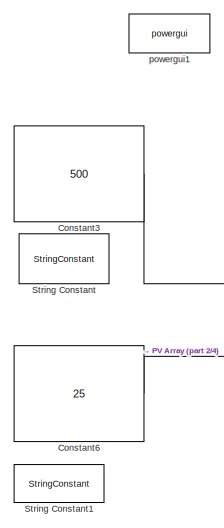
[diagram: root canvas - part 1/4, top left region]
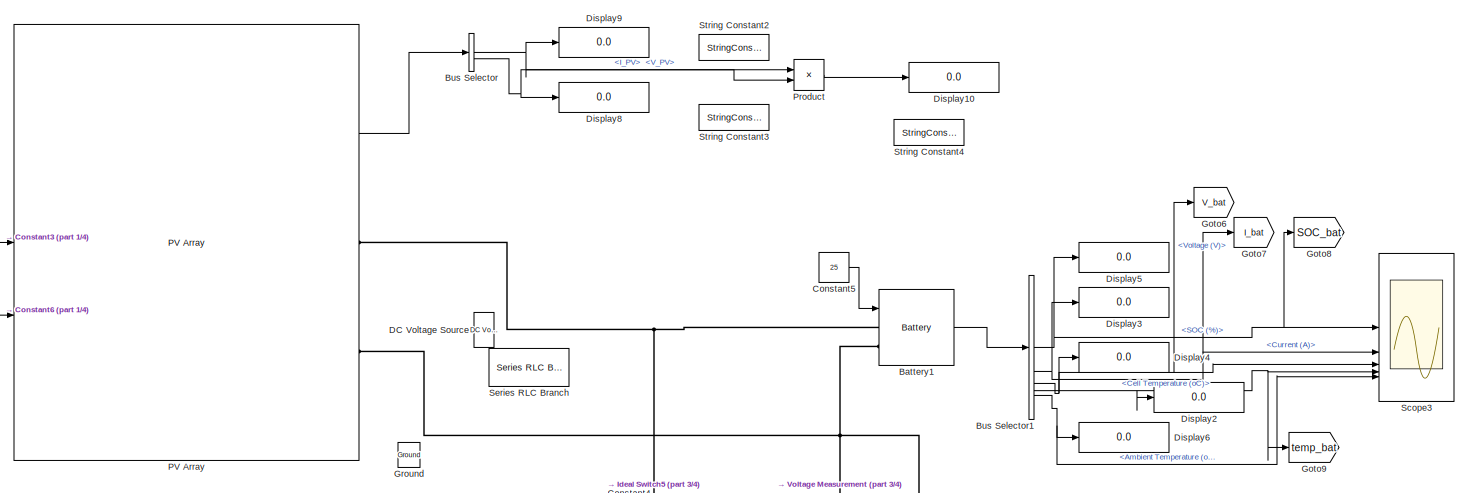
[diagram: root canvas - part 2/4, full width, top band]
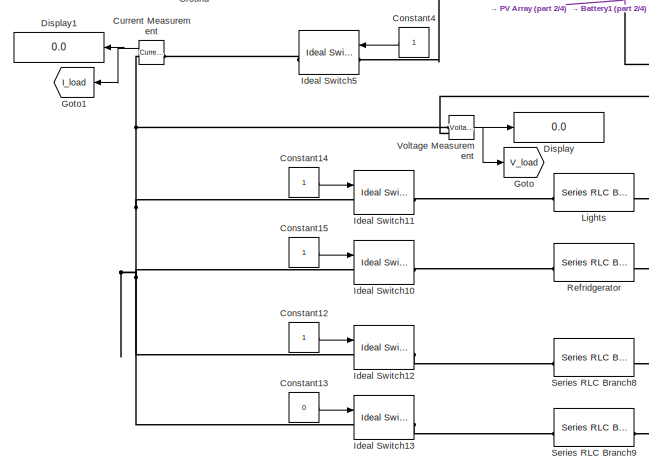
[diagram: root canvas - part 3/4, central region]
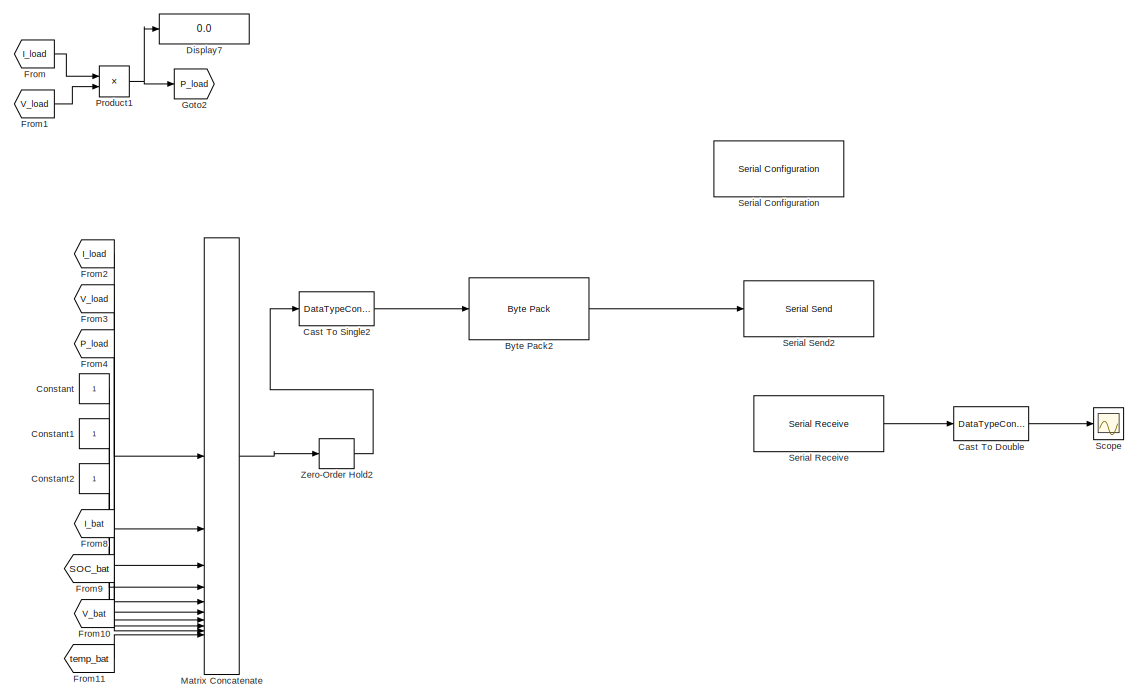
[diagram: root canvas - part 4/4, bottom center region]
MODEL slx_22304d5c0b69
KIND model
CONFIG AbsTol = auto
CONFIG EnableMultiTasking = off
CONFIG FixedStep = auto
CONFIG MaxStep = auto
CONFIG MinStep = auto
CONFIG RelTol = 1e-3
CONFIG SampleTimeConstraint = Unconstrained
CONFIG SolverName = VariableStepAuto
CONFIG StartTime = 0.0
CONFIG StopTime = 20
BLOCK [Reference] Battery1  REF=spsBatteryLib/Battery
  LibrarySourceBlock = sps_lib/Sources/Battery
  SourceBlock = spsBatteryLib/Battery
  SourceType = Battery
BLOCK [BusSelector] Bus Selector
  OutputSignals = V_PV,I_PV
BLOCK [BusSelector] Bus Selector1
  OutputSignals = SOC (%),Current (A),Voltage (V),Cell Temperature (oC),Ambient Temperature (oC)
BLOCK [Reference] Byte Pack2  REF=svdutilitieslib/Byte Pack
  LibrarySourceBlock = mcblib/Signal Management/Byte Pack
  SourceBlock = svdutilitieslib/Byte Pack
  SourceType = Byte pack
BLOCK [DataTypeConversion] Cast To Double
  OutDataTypeStr = double
  RndMeth = Floor
  SaturateOnIntegerOverflow = off
BLOCK [DataTypeConversion] Cast To Single2
  OutDataTypeStr = single
  RndMeth = Floor
  SaturateOnIntegerOverflow = off
BLOCK [Constant] Constant
BLOCK [Constant] Constant1
BLOCK [Constant] Constant12
BLOCK [Constant] Constant13
  Value = 0
BLOCK [Constant] Constant14
BLOCK [Constant] Constant15
BLOCK [Constant] Constant2
BLOCK [Constant] Constant3
  Value = 500
BLOCK [Constant] Constant4
BLOCK [Constant] Constant5
  Value = 25
BLOCK [Constant] Constant6
  Value = 25
BLOCK [Reference] Current Measurement  REF=spsCurrentMeasurementLib/Current Measurement
  LibrarySourceBlock = sps_lib/Sensors and Measurements/Current Measurement
  SourceBlock = spsCurrentMeasurementLib/Current Measurement
  SourceType = Current Measurement
  UserDataPersistent = on
BLOCK [Reference] DC Voltage Source  REF=spsDCVoltageSourceLib/DC Voltage Source
  LibrarySourceBlock = sps_lib/Sources/DC Voltage Source
  SourceBlock = spsDCVoltageSourceLib/DC Voltage Source
  SourceType = DC Voltage Source
BLOCK [Display] Display
  Decimation = 1
BLOCK [Display] Display1
  Decimation = 1
BLOCK [Display] Display10
  Decimation = 1
BLOCK [Display] Display2
  Decimation = 1
BLOCK [Display] Display3
  Decimation = 1
BLOCK [Display] Display4
  Decimation = 1
BLOCK [Display] Display5
  Decimation = 1
BLOCK [Display] Display6
  Decimation = 1
BLOCK [Display] Display7
  Decimation = 1
BLOCK [Display] Display8
  Decimation = 1
BLOCK [Display] Display9
  Decimation = 1
BLOCK [From] From
  GotoTag = I_load
BLOCK [From] From1
  GotoTag = V_load
BLOCK [From] From10
  GotoTag = V_bat
BLOCK [From] From11
  GotoTag = temp_bat
BLOCK [From] From2
  GotoTag = I_load
BLOCK [From] From3
  GotoTag = V_load
BLOCK [From] From4
  GotoTag = P_load
BLOCK [From] From8
  GotoTag = I_bat
BLOCK [From] From9
  GotoTag = SOC_bat
BLOCK [Goto] Goto
  GotoTag = V_load
BLOCK [Goto] Goto1
  GotoTag = I_load
BLOCK [Goto] Goto2
  GotoTag = P_load
BLOCK [Goto] Goto6
  GotoTag = V_bat
BLOCK [Goto] Goto7
  GotoTag = I_bat
BLOCK [Goto] Goto8
  GotoTag = SOC_bat
BLOCK [Goto] Goto9
  GotoTag = temp_bat
BLOCK [Reference] Ground  REF=spsGroundLib/Ground
  LibrarySourceBlock = sps_lib/Utilities/Ground
  NameLocation = right
  SourceBlock = spsGroundLib/Ground
  SourceType = Ground
BLOCK [Reference] Ideal Switch10  REF=spsIdealSwitchLib/Ideal Switch
  LibrarySourceBlock = sps_lib/Power Electronics/Ideal Switch
  SourceBlock = spsIdealSwitchLib/Ideal Switch
  SourceType = Ideal Switch
BLOCK [Reference] Ideal Switch11  REF=spsIdealSwitchLib/Ideal Switch
  LibrarySourceBlock = sps_lib/Power Electronics/Ideal Switch
  SourceBlock = spsIdealSwitchLib/Ideal Switch
  SourceType = Ideal Switch
BLOCK [Reference] Ideal Switch12  REF=spsIdealSwitchLib/Ideal Switch
  LibrarySourceBlock = sps_lib/Power Electronics/Ideal Switch
  SourceBlock = spsIdealSwitchLib/Ideal Switch
  SourceType = Ideal Switch
BLOCK [Reference] Ideal Switch13  REF=spsIdealSwitchLib/Ideal Switch
  LibrarySourceBlock = sps_lib/Power Electronics/Ideal Switch
  SourceBlock = spsIdealSwitchLib/Ideal Switch
  SourceType = Ideal Switch
BLOCK [Reference] Ideal Switch5  REF=spsIdealSwitchLib/Ideal Switch
  LibrarySourceBlock = sps_lib/Power Electronics/Ideal Switch
  SourceBlock = spsIdealSwitchLib/Ideal Switch
  SourceType = Ideal Switch
BLOCK [Reference] Lights  REF=spsSeriesRLCBranchLib/Series RLC Branch
  LibrarySourceBlock = sps_lib/Passives/Series RLC Branch
  SourceBlock = spsSeriesRLCBranchLib/Series RLC Branch
  SourceType = Series RLC Branch
BLOCK [Concatenate] Matrix Concatenate
  ConcatenateDimension = 2
  NumInputs = 10
BLOCK [Reference] PV Array  REF=spsPVArrayLib/PV Array
  LibrarySourceBlock = sps_lib/Sources/PV Array
  SourceBlock = spsPVArrayLib/PV Array
  SourceType = PV array
BLOCK [Product] Product
BLOCK [Product] Product1
BLOCK [Reference] Refridgerator  REF=spsSeriesRLCBranchLib/Series RLC Branch
  LibrarySourceBlock = sps_lib/Passives/Series RLC Branch
  SourceBlock = spsSeriesRLCBranchLib/Series RLC Branch
  SourceType = Series RLC Branch
BLOCK [Scope] Scope
  Floating = off
  NumInputPorts = 1
  ScopeSpecificationString = Simulink.scopes.TimeScopeBlockCfg('CurrentConfiguration', extmgr.ConfigurationSet(extmgr.Configuration('Core','General UI',true),extmgr.Configuration('Core','Source UI',true),extmgr.Configuration('Sources','WiredSimulink',true,'DataLoggingVariableName','ScopeData1'),extmgr.Configuration('Visuals','Time Domain',true),extmgr.Configuration('Tools','Plot Navigation',true),extmgr.Configuration('Tools',...<+40ch>
BLOCK [Scope] Scope3
  Floating = off
  NumInputPorts = 5
  ScopeSpecificationString = Simulink.scopes.TimeScopeBlockCfg('CurrentConfiguration', extmgr.ConfigurationSet(extmgr.Configuration('Core','General UI',true),extmgr.Configuration('Core','Source UI',true),extmgr.Configuration('Sources','WiredSimulink',true),extmgr.Configuration('Visuals','Time Domain',true,'SerializedDisplays',{struct('MinYLimReal','60.00000','MaxYLimReal','80.00000','YLabelReal','','MinYLimMag','60.00000','Ma...<+5353ch>
BLOCK [Reference] Serial Configuration  REF=instrumentseriallib/Serial Configuration
  LibrarySourceBlock = c2000lib/Host Communication/Serial Configuration
  Priority = -200000
  SourceBlock = instrumentseriallib/Serial Configuration
  SourceType = system.SerialConfiguration
BLOCK [Reference] Serial Receive  REF=instrumentseriallib/Serial Receive
  LibrarySourceBlock = c2000lib/Host Communication/Serial Receive
  Priority = 1
  SourceBlock = instrumentseriallib/Serial Receive
  SourceType = system.SerialReceive
BLOCK [Reference] Serial Send2  REF=instrumentseriallib/Serial Send
  LibrarySourceBlock = c2000lib/Host Communication/Serial Send
  Priority = 1
  SourceBlock = instrumentseriallib/Serial Send
  SourceType = system.SerialSend
BLOCK [Reference] Series RLC Branch  REF=spsSeriesRLCBranchLib/Series RLC Branch
  LibrarySourceBlock = sps_lib/Passives/Series RLC Branch
  SourceBlock = spsSeriesRLCBranchLib/Series RLC Branch
  SourceType = Series RLC Branch
BLOCK [Reference] Series RLC Branch8  REF=spsSeriesRLCBranchLib/Series RLC Branch
  LibrarySourceBlock = sps_lib/Passives/Series RLC Branch
  SourceBlock = spsSeriesRLCBranchLib/Series RLC Branch
  SourceType = Series RLC Branch
BLOCK [Reference] Series RLC Branch9  REF=spsSeriesRLCBranchLib/Series RLC Branch
  LibrarySourceBlock = sps_lib/Passives/Series RLC Branch
  SourceBlock = spsSeriesRLCBranchLib/Series RLC Branch
  SourceType = Series RLC Branch
BLOCK [StringConstant] String Constant
  String = "Irradiance"
BLOCK [StringConstant] String Constant1
  String = "Temperature"
BLOCK [StringConstant] String Constant2
  String = "Voltage"
BLOCK [StringConstant] String Constant3
  String = "Current"
BLOCK [StringConstant] String Constant4
  String = "Power"
BLOCK [Reference] Voltage Measurement  REF=spsVoltageMeasurementLib/Voltage Measurement
  LibrarySourceBlock = sps_lib/Sensors and Measurements/Voltage Measurement
  SourceBlock = spsVoltageMeasurementLib/Voltage Measurement
  SourceType = Voltage Measurement
  UserDataPersistent = on
BLOCK [ZeroOrderHold] Zero-Order Hold2
  SampleTime = -1
BLOCK [Reference] powergui1  REF=spspowerguiLib/powergui
  LibrarySourceBlock = sps_lib/powergui
  Priority = 1
  SourceBlock = spspowerguiLib/powergui
  SourceType = PSB option menu block
LINE Battery1:1 -> Bus Selector1:1
NET Bus Selector1:1 -> Display5:1, Goto8:1, Scope3:1
NET Bus Selector1:2 -> Display3:1, Goto7:1, Scope3:2
NET Bus Selector1:3 -> Display4:1, Goto6:1, Scope3:3
NET Bus Selector1:4 -> Display2:1, Goto9:1, Scope3:4
NET Bus Selector1:5 -> Display6:1, Scope3:5
NET Bus Selector:1 -> Display9:1, Product:1
NET Bus Selector:2 -> Display8:1, Product:2
LINE Byte Pack2:1 -> Serial Send2:1
LINE Cast To Double:1 -> Scope:1
LINE Cast To Single2:1 -> Byte Pack2:1
LINE Constant12:1 -> Ideal Switch12:1
LINE Constant13:1 -> Ideal Switch13:1
LINE Constant14:1 -> Ideal Switch11:1
LINE Constant15:1 -> Ideal Switch10:1
LINE Constant1:1 -> Matrix Concatenate:5
LINE Constant2:1 -> Matrix Concatenate:6
LINE Constant3:1 -> PV Array:1
LINE Constant4:1 -> Ideal Switch5:1
LINE Constant5:1 -> Battery1:1
LINE Constant6:1 -> PV Array:2
LINE Constant:1 -> Matrix Concatenate:4
NET Current Measurement:1 -> Display1:1, Goto1:1
LINE From10:1 -> Matrix Concatenate:9
LINE From11:1 -> Matrix Concatenate:10
LINE From1:1 -> Product1:2
LINE From2:1 -> Matrix Concatenate:1
LINE From3:1 -> Matrix Concatenate:2
LINE From4:1 -> Matrix Concatenate:3
LINE From8:1 -> Matrix Concatenate:7
LINE From9:1 -> Matrix Concatenate:8
LINE From:1 -> Product1:1
LINE Matrix Concatenate:1 -> Zero-Order Hold2:1
LINE PV Array:1 -> Bus Selector:1
NET Product1:1 -> Display7:1, Goto2:1
LINE Product:1 -> Display10:1
LINE Serial Receive:1 -> Cast To Double:1
NET Voltage Measurement:1 -> Display:1, Goto:1
LINE Zero-Order Hold2:1 -> Cast To Single2:1
PNET net1: Battery1:LConn1 -- Ideal Switch5:LConn1 -- PV Array:RConn1
PNET net2: Battery1:LConn2 -- Lights:RConn1 -- PV Array:RConn2 -- Refridgerator:RConn1 -- Series RLC Branch8:RConn1 -- Series RLC Branch9:RConn1 -- Voltage Measurement:LConn2
PLINE Current Measurement:LConn1 -- Ideal Switch5:RConn1
PNET net3: Current Measurement:RConn1 -- Ideal Switch10:LConn1 -- Ideal Switch11:LConn1 -- Ideal Switch12:LConn1 -- Ideal Switch13:LConn1 -- Voltage Measurement:LConn1
PLINE Ideal Switch10:RConn1 -- Refridgerator:LConn1
PLINE Ideal Switch11:RConn1 -- Lights:LConn1
PLINE Ideal Switch12:RConn1 -- Series RLC Branch8:LConn1
PLINE Ideal Switch13:RConn1 -- Series RLC Branch9:LConn1
note: NET lines group one-source signal fan-out (src -> all destinations, sorted); 1:1 wires keep LINE; PNET lines group multi-terminal physical nets as a canonical sorted terminal list (undirected conserving connections); 2-terminal nets keep the pairwise PLINE form
